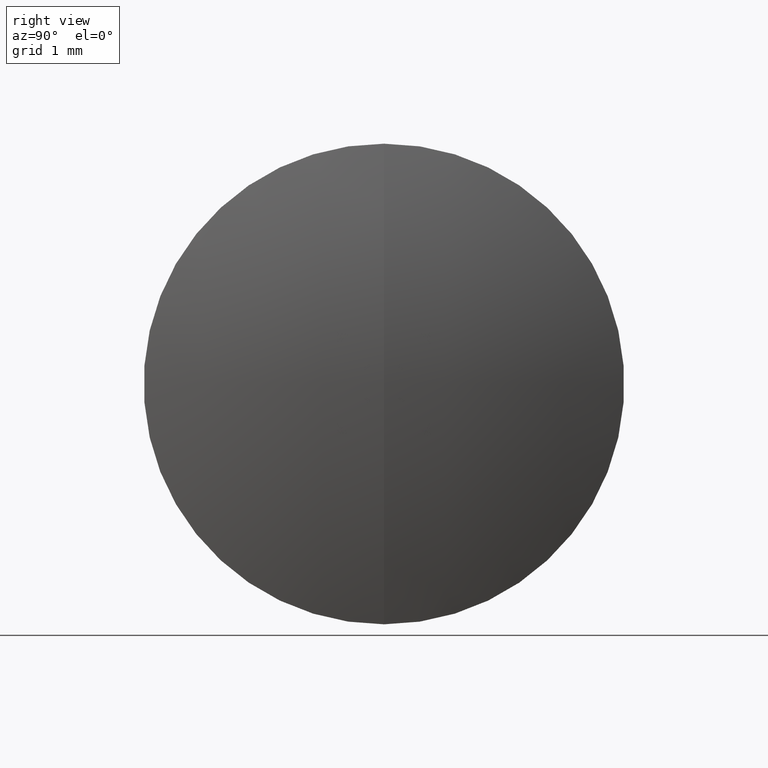
[diagram: clean part render]
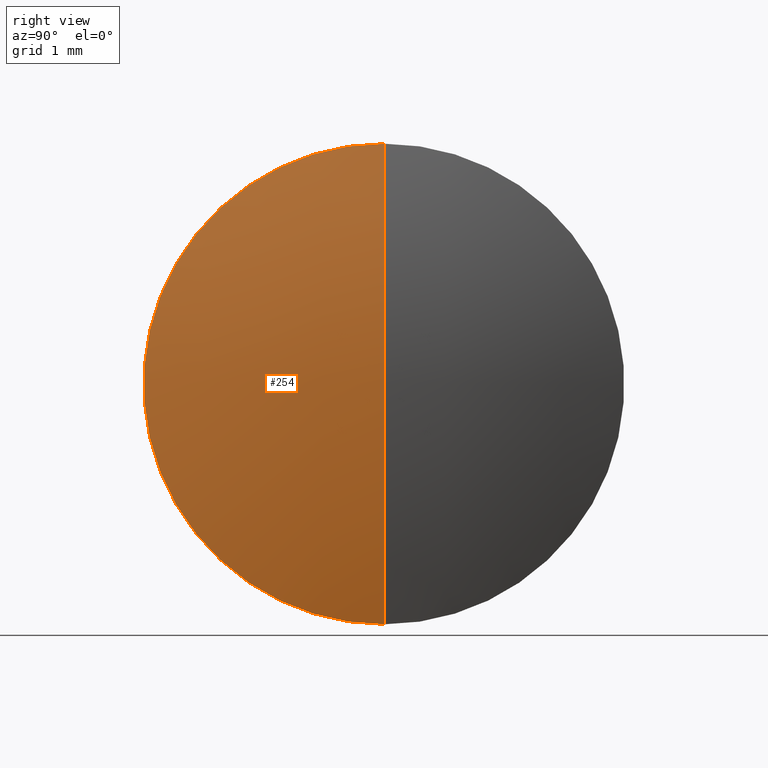
[diagram: same view with one face highlighted and labeled with its STEP entity id]
A machine part, right view. The second image highlights one B-rep face of the part: STEP entity #254.
In plain terms, the highlighted spherical surface has radius 11.32 mm.
Its self-contained STEP definition (entity closure, byte-faithful):
#6 = DIRECTION ( 'NONE',  ( -0.0000000000000000000, -1.000000000000000000, -0.0000000000000000000 ) ) ;
#13 = EDGE_CURVE ( 'NONE', #185, #115, #188, .T. ) ;
#20 = ORIENTED_EDGE ( 'NONE', *, *, #13, .F. ) ;
#60 = DIRECTION ( 'NONE',  ( 0.0000000000000000000, -1.000000000000000000, -1.224646799147353200E-016 ) ) ;
#62 = AXIS2_PLACEMENT_3D ( 'NONE', #193, #6, #305 ) ;
#80 = EDGE_LOOP ( 'NONE', ( #20, #296, #281 ) ) ;
#83 = DIRECTION ( 'NONE',  ( 0.0000000000000000000, 1.224646799147353200E-016, -1.000000000000000000 ) ) ;
#86 = EDGE_CURVE ( 'NONE', #115, #101, #104, .T. ) ;
#101 = VERTEX_POINT ( 'NONE', #270 ) ;
#104 = CIRCLE ( 'NONE', #151, 3.174999999999998000 ) ;
#111 = DIRECTION ( 'NONE',  ( 0.0000000000000000000, 0.0000000000000000000, 1.000000000000000000 ) ) ;
#115 = VERTEX_POINT ( 'NONE', #189 ) ;
#151 = AXIS2_PLACEMENT_3D ( 'NONE', #277, #202, #190 ) ;
#163 = SPHERICAL_SURFACE ( 'NONE', #62, 11.32000000000000000 ) ;
#174 = FACE_OUTER_BOUND ( 'NONE', #80, .T. ) ;
#181 = CARTESIAN_POINT ( 'NONE',  ( -6.472040515916891200, 0.0000000000000000000, 0.0000000000000000000 ) ) ;
#185 = VERTEX_POINT ( 'NONE', #215 ) ;
#188 = CIRCLE ( 'NONE', #261, 11.32000000000000000 ) ;
#189 = CARTESIAN_POINT ( 'NONE',  ( 4.393583028086461600, 0.0000000000000000000, -3.175000000000001600 ) ) ;
#190 = DIRECTION ( 'NONE',  ( 0.0000000000000000000, 0.0000000000000000000, 1.000000000000000000 ) ) ;
#193 = CARTESIAN_POINT ( 'NONE',  ( -6.472040515916891200, 0.0000000000000000000, 0.0000000000000000000 ) ) ;
#202 = DIRECTION ( 'NONE',  ( -1.000000000000000000, -0.0000000000000000000, -0.0000000000000000000 ) ) ;
#215 = CARTESIAN_POINT ( 'NONE',  ( 4.847959484083109100, 0.0000000000000000000, -6.931500883174019100E-016 ) ) ;
#254 = ADVANCED_FACE ( 'NONE', ( #174 ), #163, .T. ) ;
#261 = AXIS2_PLACEMENT_3D ( 'NONE', #181, #342, #111 ) ;
#265 = CARTESIAN_POINT ( 'NONE',  ( -6.472040515916891200, 0.0000000000000000000, 0.0000000000000000000 ) ) ;
#270 = CARTESIAN_POINT ( 'NONE',  ( 4.393583028086461600, -3.888253587292848500E-016, 3.175000000000001600 ) ) ;
#277 = CARTESIAN_POINT ( 'NONE',  ( 4.393583028086461600, 0.0000000000000000000, 0.0000000000000000000 ) ) ;
#281 = ORIENTED_EDGE ( 'NONE', *, *, #86, .F. ) ;
#296 = ORIENTED_EDGE ( 'NONE', *, *, #297, .T. ) ;
#297 = EDGE_CURVE ( 'NONE', #185, #101, #336, .T. ) ;
#300 = AXIS2_PLACEMENT_3D ( 'NONE', #265, #60, #83 ) ;
#305 = DIRECTION ( 'NONE',  ( 0.0000000000000000000, 0.0000000000000000000, -1.000000000000000000 ) ) ;
#336 = CIRCLE ( 'NONE', #300, 11.32000000000000000 ) ;
#342 = DIRECTION ( 'NONE',  ( 0.0000000000000000000, 1.000000000000000000, -0.0000000000000000000 ) ) ;